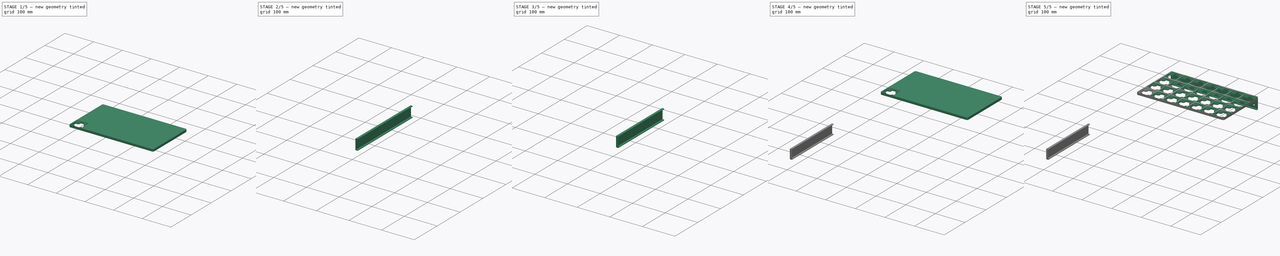
[diagram: build sequence overview — one tinted view per stage of 5, left to right]
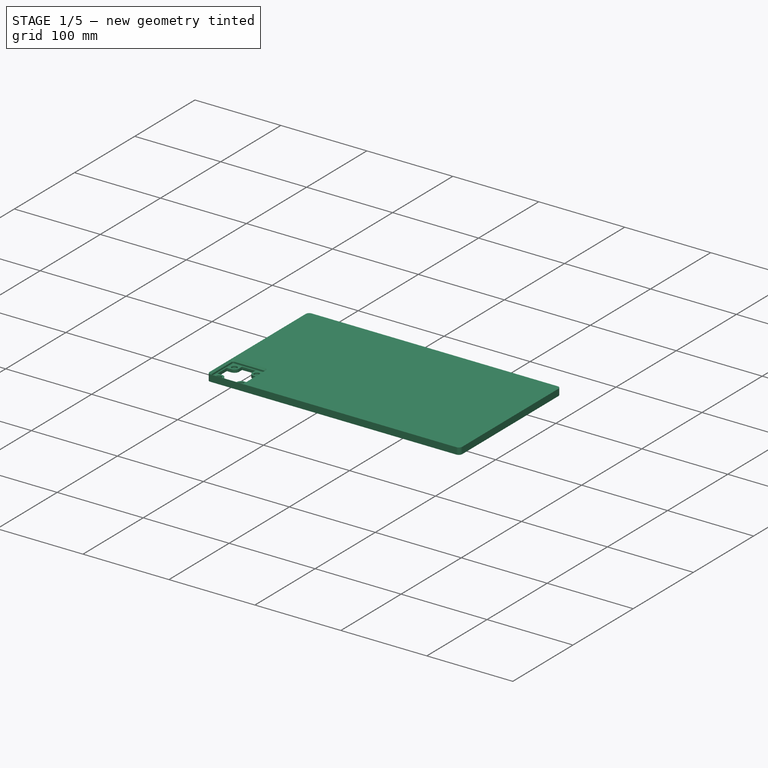
[diagram: stage 1 of 5 — iso view after this stage's code; geometry added in this stage tinted green]
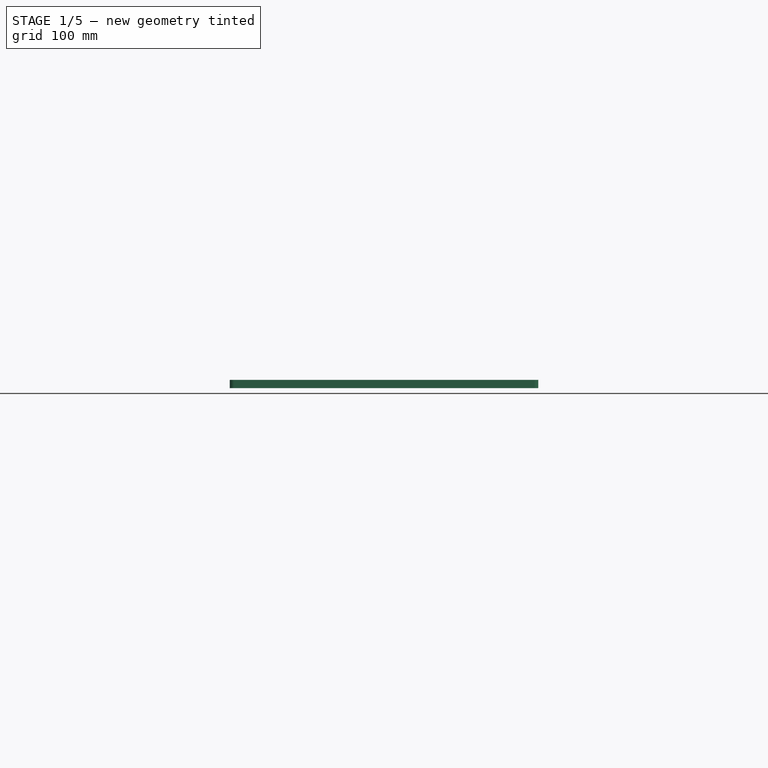
[diagram: stage 1 of 5 — front view after this stage's code; geometry added in this stage tinted green]
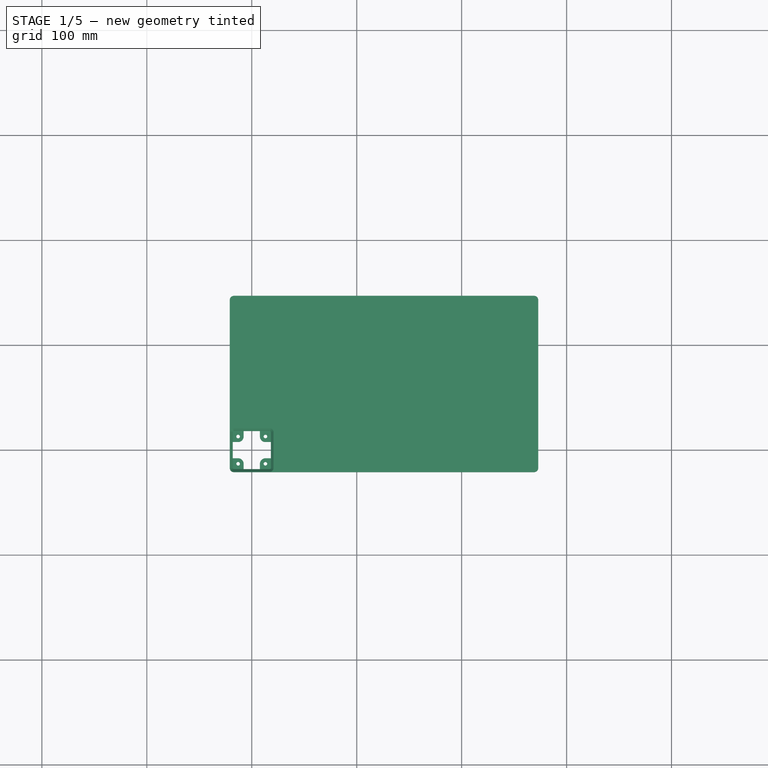
[diagram: stage 1 of 5 — top view after this stage's code; geometry added in this stage tinted green]
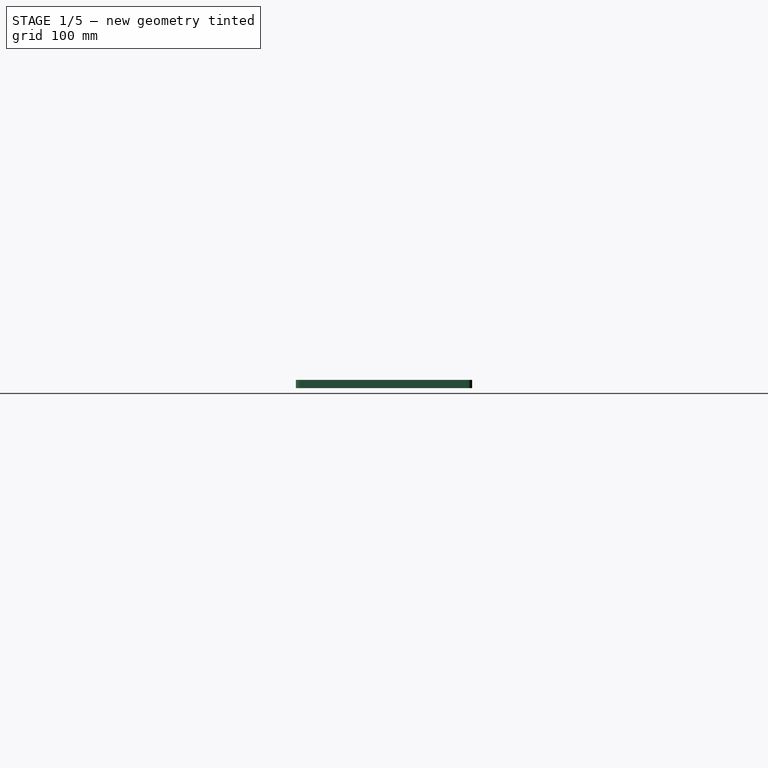
[diagram: stage 1 of 5 — right view after this stage's code; geometry added in this stage tinted green]
FCSTD DOCUMENT  (FreeCAD 1.1R20260223 (Git shallow))
Label: TableCornerGridfinity
License: Creative Commons Attribution 4.0
LicenseURL: https://creativecommons.org/licenses/by/4.0/
objects: Sketcher::SketchObject×19, PartDesign::Pad×10, PartDesign::Pocket×9, App::Point×4, PartDesign::Hole×4, PartDesign::Body×4, PartDesign::Chamfer×3, PartDesign::LinearPattern×2, PartDesign::SubShapeBinder×2, PartDesign::Fillet×1
note: 129 computed .brp shape members not serialized (recipe doc carries the construction recipe); baked Part::Feature solids carry a one-line shape summary decoded from their .brp

FEATURE [App::Point] Origin004
  Role = Origin
FEATURE [Sketcher::SketchObject] Sketch005
  ArcFitTolerance = 1e-06
  AttachmentSupport = -> [Origin003]
  ExternalTypes = [0]
  FullyConstrained = true
  MakeInternals = false
  MapMode = 5
  expr: Constraints[30] = href(<<Gridfinity Baseplate>>.Depth) * 42
  expr: Constraints[31] = href(<<Gridfinity Baseplate>>.Width) * 42
  sketch-geometry (10):
    g0: LineSegment StartX=-17 StartY=-21 StartZ=0 EndX=269 EndY=-21 EndZ=0
    g1: LineSegment StartX=273 StartY=-17 StartZ=0 EndX=273 EndY=143 EndZ=0
    g2: LineSegment StartX=269 StartY=147 StartZ=0 EndX=-17 EndY=147 EndZ=0
    g3: LineSegment StartX=-21 StartY=143 StartZ=0 EndX=-21 EndY=-17 EndZ=0
    g4: ArcOfCircle CenterX=-17 CenterY=-17 CenterZ=0 NormalX=0 NormalY=0 NormalZ=1 AngleXU=0 Radius=4 StartAngle=3.14159 EndAngle=4.71239
    g5: ArcOfCircle CenterX=269 CenterY=-17 CenterZ=0 NormalX=0 NormalY=0 NormalZ=1 AngleXU=0 Radius=4 StartAngle=4.71239 EndAngle=6.28319
    g6: ArcOfCircle CenterX=269 CenterY=143 CenterZ=0 NormalX=0 NormalY=0 NormalZ=1 AngleXU=0 Radius=4 StartAngle=0 EndAngle=1.5708
    g7: ArcOfCircle CenterX=-17 CenterY=143 CenterZ=0 NormalX=0 NormalY=0 NormalZ=1 AngleXU=0 Radius=4 StartAngle=1.5708 EndAngle=3.14159
    g8: GeomPoint [constr] X=-21 Y=-21 Z=0
    g9: GeomPoint [constr] X=273 Y=147 Z=0
  constraints (32):
    c: Horizontal(g0)
    c: Horizontal(g2)
    c: Vertical(g1)
    c: Vertical(g3)
    c: Equal(g4,g5)
    c: Equal(g5,g6)
    c: Equal(g6,g7)
    c: PointOnObject(g8,g0)
    c: PointOnObject(g8,g3)
    c: PointOnObject(g9,g1)
    c: PointOnObject(g9,g2)
    c: Vertical(g6,g2)
    c: Vertical(g2,g7)
    c: Vertical(g5,g0)
    c: Vertical(g4,g0)
    c: Horizontal(g3,g4)
    c: Horizontal(g5,g1)
    c: Horizontal(g6,g1)
    c: Horizontal(g3,g7)
    c: Radius(g6) = 4
    c: Coincident(g7,g2)
    c: Coincident(g7,g3)
    c: Coincident(g6,g1)
    c: Coincident(g6,g2)
    c: Coincident(g5,g1)
    c: Coincident(g5,g0)
    c: Coincident(g4,g0)
    c: Coincident(g4,g3)
    c: DistanceX(g3,g-1) = 21
    c: DistanceY(g0,g-1) = 21
    c: DistanceY(g0,g2) = 168
    c: DistanceX(g3,g1) = 294
FEATURE [PartDesign::Pad] Pad004
  Direction = (0,0,1)
  Length = 4.75
  Length2 = 3
  Profile = -> Sketch005
  ReferenceAxis = -> Sketch005 [N_Axis]
  SideType = 1
  Suppressed = false
  Type = 0
  Type2 = 0
FEATURE [Sketcher::SketchObject] Sketch007
  ArcFitTolerance = 1e-06
  AttachmentOffset = pos=(0,0,0.25) rot=(0,0,1;0rad)
  AttachmentSupport = -> [Pad004]
  ExternalGeometry = -> [Pad004]
  ExternalTypes = [0,0]
  FullyConstrained = true
  MakeInternals = false
  MapMode = 5
  Placement = pos=(0,0,5) rot=(0,0,1;0rad)
  sketch-geometry (8):
    g0: LineSegment StartX=-21 StartY=-17 StartZ=0 EndX=-21 EndY=17 EndZ=0
    g1: LineSegment StartX=-17 StartY=-21 StartZ=0 EndX=17 EndY=-21 EndZ=0
    g2: LineSegment StartX=21 StartY=-17 StartZ=0 EndX=21 EndY=17 EndZ=0
    g3: LineSegment StartX=-17 StartY=21 StartZ=0 EndX=17 EndY=21 EndZ=0
    g4: ArcOfCircle CenterX=-17 CenterY=-17 CenterZ=0 NormalX=0 NormalY=0 NormalZ=1 AngleXU=0 Radius=4 StartAngle=3.14159 EndAngle=4.71239
    g5: ArcOfCircle CenterX=17 CenterY=-17 CenterZ=0 NormalX=0 NormalY=0 NormalZ=1 AngleXU=0 Radius=4 StartAngle=4.71239 EndAngle=6.28319
    g6: ArcOfCircle CenterX=17 CenterY=17 CenterZ=0 NormalX=0 NormalY=0 NormalZ=1 AngleXU=0 Radius=4 StartAngle=0 EndAngle=1.5708
    g7: ArcOfCircle CenterX=-17 CenterY=17 CenterZ=0 NormalX=0 NormalY=0 NormalZ=1 AngleXU=0 Radius=4 StartAngle=1.5708 EndAngle=3.14159
  constraints (26):
    c: Vertical(g0)
    c: Horizontal(g1)
    c: Vertical(g2)
    c: Horizontal(g3)
    c: Coincident(g0,g-3)
    c: Coincident(g1,g-4)
    c: Vertical(g7,g7)
    c: Vertical(g6,g6)
    c: Vertical(g5,g5)
    c: Vertical(g4,g4)
    c: Horizontal(g7,g7)
    c: Horizontal(g6,g6)
    c: Horizontal(g5,g5)
    c: Coincident(g7,g0)
    c: Coincident(g7,g3)
    c: Coincident(g3,g6)
    c: Coincident(g6,g2)
    c: Coincident(g5,g2)
    c: Coincident(g5,g1)
    c: Coincident(g4,g1)
    c: Coincident(g4,g0)
    c: Equal(g4,g7)
    c: Equal(g7,g6)
    c: Equal(g6,g5)
    c: Equal(g2,g1)
    c: DistanceX(g0,g2) = 42
FEATURE [PartDesign::Pocket] Pocket001
  BaseFeature = -> Pad004
  Direction = (0,0,-1)
  Length = 2.15
  Length2 = 5
  Profile = -> Sketch007
  ReferenceAxis = -> Sketch007 [N_Axis]
  SideType = 0
  Suppressed = false
  TaperAngle = -45
  Type = 0
  Type2 = 0
FEATURE [PartDesign::Pocket] Pocket002
  BaseFeature = -> Pocket001
  Direction = (0,0,-1)
  Length = 1.8
  Length2 = 5
  Profile = -> Pocket001 [Edge45,Edge43,Edge41,Edge39,Edge37,Edge34,Edge48,Edge47]
  SideType = 0
  Suppressed = false
  Type = 0
  Type2 = 0
FEATURE [PartDesign::Pocket] Pocket003
  BaseFeature = -> Pocket002
  Direction = (0,0,-1)
  Length = 0.7
  Length2 = 5
  Profile = -> Pocket002 [Edge61,Edge59,Edge57,Edge55,Edge53,Edge51,Edge64,Edge63]
  SideType = 0
  Suppressed = false
  TaperAngle = -45
  Type = 0
  Type2 = 0
FEATURE [Sketcher::SketchObject] Sketch008
  ArcFitTolerance = 1e-06
  AttachmentSupport = -> [Pocket003]
  ExternalGeometry = -> [Pocket003]
  ExternalTypes = [0,0]
  FullyConstrained = true
  MakeInternals = false
  MapMode = 5
  Placement = pos=(0,0,0.35) rot=(0,0,1;0rad)
  sketch-geometry (6):
    g0: Circle CenterX=-13 CenterY=-13 CenterZ=0 NormalX=0 NormalY=0 NormalZ=1 AngleXU=0 Radius=3.25
    g1: Circle CenterX=13 CenterY=-13 CenterZ=0 NormalX=0 NormalY=0 NormalZ=1 AngleXU=0 Radius=3.25
    g2: Circle CenterX=13 CenterY=13 CenterZ=0 NormalX=0 NormalY=0 NormalZ=1 AngleXU=0 Radius=3.25
    g3: Circle CenterX=-13 CenterY=13 CenterZ=0 NormalX=0 NormalY=0 NormalZ=1 AngleXU=0 Radius=3.25
    g4: LineSegment [constr] StartX=-13 StartY=-13 StartZ=0 EndX=13 EndY=-13 EndZ=0
    g5: LineSegment [constr] StartX=-13 StartY=-13 StartZ=0 EndX=-13 EndY=13 EndZ=0
  constraints (16):
    c: Equal(g3,g2)
    c: Equal(g2,g1)
    c: Equal(g1,g0)
    c: Vertical(g3,g0)
    c: Vertical(g2,g1)
    c: Horizontal(g3,g2)
    c: Horizontal(g0,g1)
    c: DistanceX(g-3,g0) = 8
    c: DistanceY(g-4,g0) = 8
    c: Diameter(g0) = 6.5
    c: Coincident(g4,g0)
    c: Coincident(g4,g1)
    c: Coincident(g5,g0)
    c: Coincident(g5,g3)
    c: Equal(g5,g4)
    c: DistanceX(g4,g4) = 26
FEATURE [PartDesign::Hole] Hole001
  BaseFeature = -> Pocket003
  BaseProfileType = 7
  CustomThreadClearance = 0
  Depth = 646.312
  DepthType = 1
  Diameter = 3.4
  DrillForDepth = false
  DrillPoint = 0
  DrillPointAngle = 118
  HoleCutCountersinkAngle = 90
  HoleCutCustomValues = false
  HoleCutDepth = 2
  HoleCutDiameter = 6.5
  HoleCutType = 1
  ModelThread = false
  Profile = -> Sketch008
  Suppressed = false
  Tapered = false
  TaperedAngle = 90
  ThreadClass = 0
  ThreadDepth = 646.312
  ThreadDepthType = 0
  ThreadDiameter = 3
  ThreadDirection = 0
  ThreadFit = 0
  ThreadSize = 9
  ThreadType = 1
  Threaded = false
  UseCustomThreadClearance = false
FEATURE [Sketcher::SketchObject] Sketch009
  ArcFitTolerance = 1e-06
  AttachmentSupport = -> [Hole001]
  ExternalGeometry = -> [Sketch008,Hole001]
  ExternalTypes = [0,0,0,0,0,0,0,0]
  FullyConstrained = true
  MakeInternals = false
  MapMode = 5
  Placement = pos=(0,0,0.35) rot=(0,0,1;0rad)
  sketch-geometry (16):
    g0: ArcOfCircle CenterX=-13 CenterY=13 CenterZ=0 NormalX=0 NormalY=0 NormalZ=1 AngleXU=0 Radius=5.25 StartAngle=4.71239 EndAngle=6.28319
    g1: ArcOfCircle CenterX=13 CenterY=13 CenterZ=0 NormalX=0 NormalY=0 NormalZ=1 AngleXU=0 Radius=5.25 StartAngle=3.14159 EndAngle=4.71239
    g2: ArcOfCircle CenterX=13 CenterY=-13 CenterZ=0 NormalX=0 NormalY=0 NormalZ=1 AngleXU=0 Radius=5.25 StartAngle=1.5708 EndAngle=3.14159
    g3: ArcOfCircle CenterX=-13 CenterY=-13 CenterZ=0 NormalX=0 NormalY=0 NormalZ=1 AngleXU=0 Radius=5.25 StartAngle=0 EndAngle=1.5708
    g4: LineSegment StartX=-7.75 StartY=13 StartZ=0 EndX=-7.75 EndY=18.15 EndZ=0
    g5: LineSegment StartX=7.75 StartY=13 StartZ=0 EndX=7.75 EndY=18.15 EndZ=0
    g6: LineSegment StartX=13 StartY=7.75 StartZ=0 EndX=18.15 EndY=7.75 EndZ=0
    g7: LineSegment StartX=13 StartY=-7.75 StartZ=0 EndX=18.15 EndY=-7.75 EndZ=0
    g8: LineSegment StartX=7.75 StartY=-13 StartZ=0 EndX=7.75 EndY=-18.15 EndZ=0
    g9: LineSegment StartX=-7.75 StartY=-13 StartZ=0 EndX=-7.75 EndY=-18.15 EndZ=0
    g10: LineSegment StartX=-13 StartY=-7.75 StartZ=0 EndX=-18.15 EndY=-7.75 EndZ=0
    g11: LineSegment StartX=-13 StartY=7.75 StartZ=0 EndX=-18.15 EndY=7.75 EndZ=0
    g12: LineSegment StartX=-7.75 StartY=18.15 StartZ=0 EndX=7.75 EndY=18.15 EndZ=0
    g13: LineSegment StartX=18.15 StartY=7.75 StartZ=0 EndX=18.15 EndY=-7.75 EndZ=0
    g14: LineSegment StartX=7.75 StartY=-18.15 StartZ=0 EndX=-7.75 EndY=-18.15 EndZ=0
    g15: LineSegment StartX=-18.15 StartY=-7.75 StartZ=0 EndX=-18.15 EndY=7.75 EndZ=0
  constraints (48):
    c: Coincident(g0,g-3)
    c: Coincident(g1,g-4)
    c: Coincident(g2,g-5)
    c: Coincident(g3,g-6)
    c: Equal(g3,g2)
    c: Equal(g2,g1)
    c: Equal(g1,g0)
    c: Vertical(g0,g0)
    c: Vertical(g3,g3)
    c: Vertical(g2,g2)
    c: Vertical(g1,g1)
    c: Horizontal(g0,g0)
    c: Horizontal(g1,g1)
    c: Horizontal(g3,g3)
    c: Horizontal(g2,g2)
    c: Distance(g-3,g0) = 2
    c: Coincident(g4,g0)
    c: PointOnObject(g4,g-8)
    c: Vertical(g4)
    c: Coincident(g5,g1)
    c: PointOnObject(g5,g-8)
    c: Vertical(g5)
    c: Coincident(g6,g1)
    c: PointOnObject(g6,g-9)
    c: Horizontal(g6)
    c: Coincident(g7,g2)
    c: PointOnObject(g7,g-9)
    c: Horizontal(g7)
    c: Coincident(g8,g2)
    c: PointOnObject(g8,g-10)
    c: Vertical(g8)
    c: Coincident(g9,g3)
    c: PointOnObject(g9,g-10)
    c: Vertical(g9)
    c: Coincident(g10,g3)
    c: PointOnObject(g10,g-7)
    c: Horizontal(g10)
    c: Coincident(g11,g0)
    c: PointOnObject(g11,g-7)
    c: Horizontal(g11)
    c: Coincident(g12,g4)
    c: Coincident(g12,g5)
    c: Coincident(g13,g6)
    c: Coincident(g13,g7)
    c: Coincident(g14,g8)
    c: Coincident(g14,g9)
    c: Coincident(g15,g10)
    c: Coincident(g15,g11)
FEATURE [PartDesign::Pocket] Pocket004
  BaseFeature = -> Hole001
  Direction = (0,0,-1)
  Length = 5
  Length2 = 5
  Profile = -> Sketch009
  ReferenceAxis = -> Sketch009 [N_Axis]
  SideType = 0
  Suppressed = false
  Type = 1
  Type2 = 0
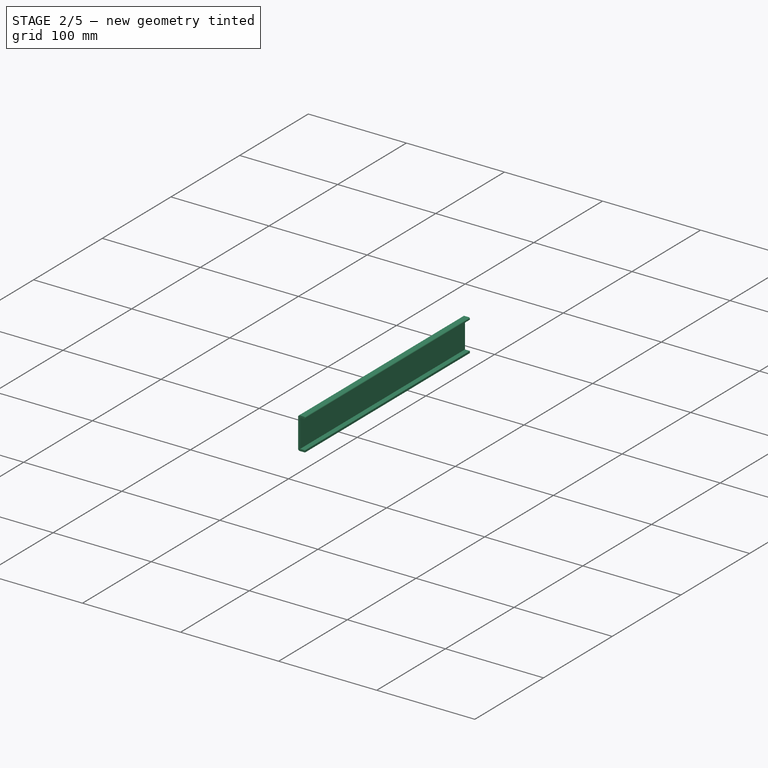
[diagram: stage 2 of 5 — iso view after this stage's code; geometry added in this stage tinted green]
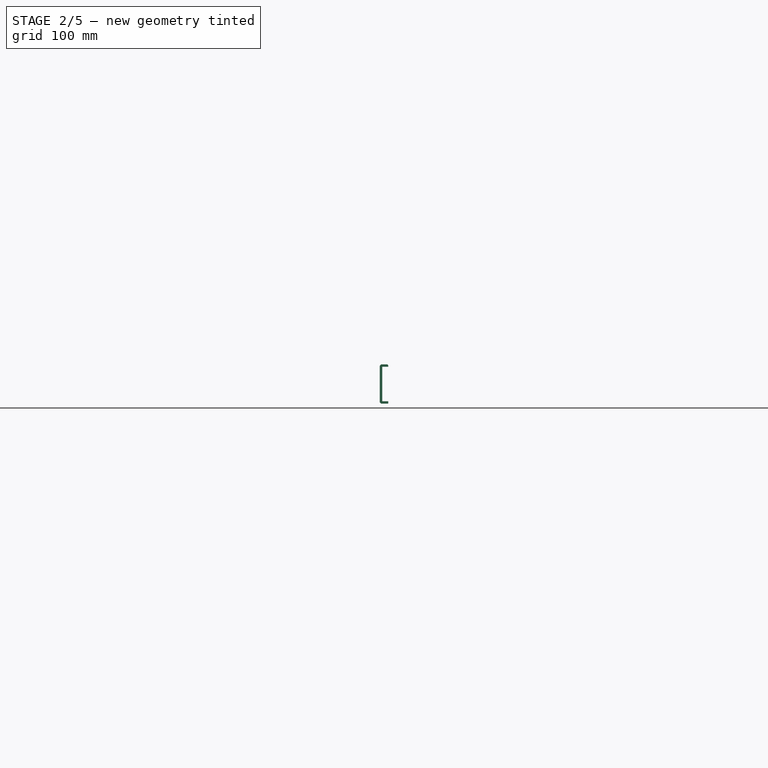
[diagram: stage 2 of 5 — front view after this stage's code; geometry added in this stage tinted green]
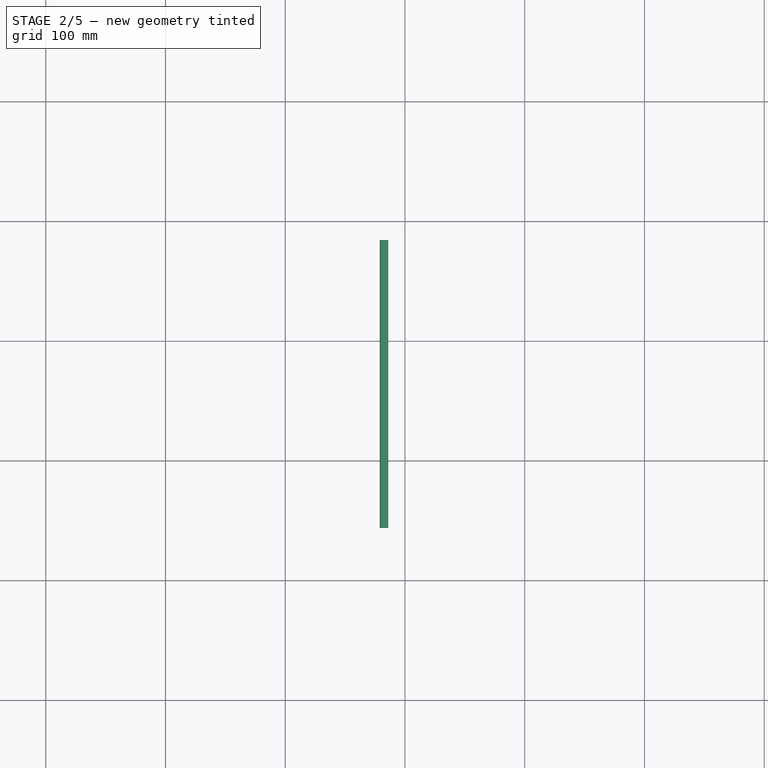
[diagram: stage 2 of 5 — top view after this stage's code; geometry added in this stage tinted green]
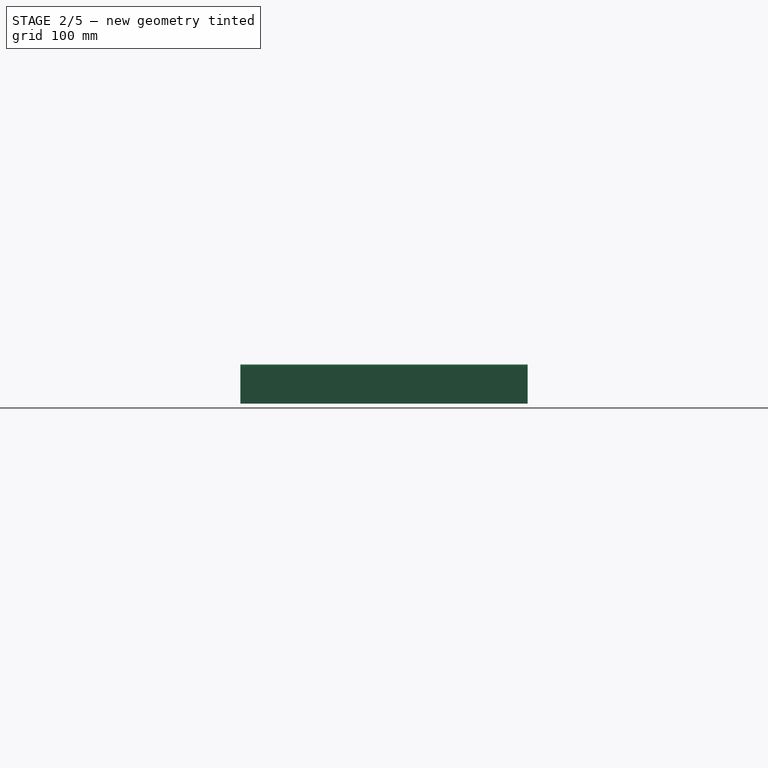
[diagram: stage 2 of 5 — right view after this stage's code; geometry added in this stage tinted green]
FEATURE [PartDesign::LinearPattern] LinearPattern
  BaseFeature = -> Pocket004
  Direction = -> Sketch007 [H_Axis]
  Direction2 = -> Sketch007 [V_Axis]
  Length = 252
  Length2 = 126
  Mode = 1
  Mode2 = 1
  Occurrences = 7
  Occurrences2 = 4
  Offset = 42
  Offset2 = 42
  Originals = -> [Pocket001,Pocket002,Pocket003,Hole001,Pocket004]
  Reversed2 = false
  SpacingPattern = [42]
  SpacingPattern2 = [42]
  Spacings = [-1,-1,-1,-1,-1,-1]
  Spacings2 = [-1,-1,-1]
  Suppressed = false
  TransformMode = 0
  expr: Occurrences = href(<<Gridfinity Baseplate>>.Width)
  expr: Occurrences2 = href(<<Gridfinity Baseplate>>.Depth)
FEATURE [Sketcher::SketchObject] Sketch
  ArcFitTolerance = 1e-06
  AttachmentOffset = pos=(0,0,-3) rot=(0,0,1;0rad)
  AttachmentSupport = -> [Origin003]
  ExternalGeometry = -> [LinearPattern]
  ExternalTypes = [0,0,0,0]
  FullyConstrained = true
  MakeInternals = false
  MapMode = 5
  Placement = pos=(0,0,-3) rot=(0,0,1;0rad)
  sketch-geometry (6):
    g0: LineSegment StartX=269 StartY=147 StartZ=0 EndX=-17 EndY=147 EndZ=0
    g1: LineSegment StartX=-21 StartY=143 StartZ=0 EndX=-21 EndY=-17 EndZ=0
    g2: ArcOfCircle CenterX=269 CenterY=143 CenterZ=0 NormalX=0 NormalY=0 NormalZ=1 AngleXU=0 Radius=4 StartAngle=0.523599 EndAngle=1.5708
    g3: ArcOfCircle CenterX=-17 CenterY=-17 CenterZ=0 NormalX=0 NormalY=0 NormalZ=1 AngleXU=0 Radius=4 StartAngle=3.14159 EndAngle=4.18879
    g4: LineSegment StartX=-19 StartY=-20.4641 StartZ=0 EndX=-19 EndY=145 EndZ=0
    g5: LineSegment StartX=272.464 StartY=145 StartZ=0 EndX=-19 EndY=145 EndZ=0
  constraints (15):
    c: Coincident(g0,g-5)
    c: Coincident(g0,g-3)
    c: Coincident(g1,g-3)
    c: Coincident(g1,g-4)
    c: Coincident(g2,g-5)
    c: Coincident(g2,g0)
    c: DistanceY(g2,g0) = 2
    c: Coincident(g3,g-4)
    c: Coincident(g3,g1)
    c: Coincident(g4,g3)
    c: Vertical(g4)
    c: Coincident(g5,g2)
    c: Horizontal(g5)
    c: Coincident(g5,g4)
    c: DistanceX(g1,g3) = 2
FEATURE [PartDesign::Pad] Pad
  BaseFeature = -> LinearPattern
  Direction = (0,0,1)
  Length = 28.75
  Length2 = 10
  Profile = -> Sketch
  ReferenceAxis = -> Sketch [N_Axis]
  Reversed = true
  SideType = 0
  Suppressed = false
  Type = 0
  Type2 = 0
FEATURE [Sketcher::SketchObject] Sketch010
  ArcFitTolerance = 1e-06
  AttachmentSupport = -> [Pad]
  ExternalGeometry = -> [Pad]
  ExternalTypes = [0,0,0,0,0]
  FullyConstrained = true
  MakeInternals = false
  MapMode = 5
  Placement = pos=(0,0,-31.75) rot=(1,0,0;3.14159rad)
  sketch-geometry (4):
    g0: LineSegment StartX=-19 StartY=20.4641 StartZ=0 EndX=-14 EndY=20.4641 EndZ=0
    g1: LineSegment StartX=-14 StartY=20.4641 StartZ=0 EndX=-14 EndY=-140 EndZ=0
    g2: LineSegment StartX=-14 StartY=-140 StartZ=0 EndX=272.464 EndY=-140 EndZ=0
    g3: LineSegment StartX=272.464 StartY=-140 StartZ=0 EndX=272.464 EndY=-145 EndZ=0
  constraints (11):
    c: Coincident(g-3,g0)
    c: Horizontal(g0)
    c: Coincident(g0,g1)
    c: Vertical(g1)
    c: Coincident(g1,g2)
    c: Horizontal(g2)
    c: Coincident(g2,g3)
    c: Coincident(g3,g-7)
    c: Vertical(g3)
    c: Equal(g0,g3)
    c: DistanceY(g3,g3) = 5
FEATURE [PartDesign::Pad] Pad005
  BaseFeature = -> Pad
  Direction = (0,0,-1)
  Length = 2
  Length2 = 10
  Profile = -> Sketch010
  ReferenceAxis = -> Sketch010 [N_Axis]
  Refine = true
  SideType = 0
  Suppressed = false
  Type = 0
  Type2 = 0
FEATURE [PartDesign::Chamfer] Chamfer
  Angle = 45
  Base = -> Pad005 [Edge3621]
  BaseFeature = -> Pad005
  ChamferType = 0
  FlipDirection = false
  Size = 1
  Size2 = 1
  SupportTransform = false
  Suppressed = false
  UseAllEdges = false
FEATURE [Sketcher::SketchObject] Sketch011
  ArcFitTolerance = 1e-06
  AttachmentSupport = -> [Chamfer]
  ExternalGeometry = -> [Chamfer]
  ExternalTypes = [0,0]
  FullyConstrained = true
  MakeInternals = false
  MapMode = 5
  Placement = pos=(0,147,0) rot=(0,0.707107,0.707107;3.14159rad)
  sketch-geometry (3):
    g0: GeomPoint X=-259 Y=-22.75 Z=0
    g1: GeomPoint X=7 Y=-22.75 Z=0
    g2: LineSegment [constr] StartX=-126 StartY=-32.75 StartZ=0 EndX=-126 EndY=4.75 EndZ=0
  constraints (6):
    c: Horizontal(g2,g-3)
    c: Horizontal(g-3,g2)
    c: Symmetric(g-3,g-4,g2)
    c: Symmetric(g0,g1,g2)
    c: DistanceX(g1,g-4) = 10
    c: DistanceY(g-4,g1) = 10
FEATURE [PartDesign::Hole] Hole
  BaseFeature = -> Chamfer
  BaseProfileType = 7
  CustomThreadClearance = 0
  Depth = 688.409
  DepthType = 1
  Diameter = 3.9
  DrillForDepth = false
  DrillPoint = 1
  DrillPointAngle = 118
  HoleCutCountersinkAngle = 90
  HoleCutCustomValues = false
  HoleCutDepth = 3.25
  HoleCutDiameter = 6.5
  HoleCutType = 2
  ModelThread = false
  Profile = -> Sketch011
  Suppressed = false
  Tapered = false
  TaperedAngle = 90
  ThreadClass = 0
  ThreadDepth = 688.409
  ThreadDepthType = 0
  ThreadDiameter = 3.5
  ThreadDirection = 0
  ThreadFit = 0
  ThreadSize = 10
  ThreadType = 1
  Threaded = false
  UseCustomThreadClearance = false
FEATURE [PartDesign::Body] Body002  label="Gridfinity Baseplate001"
  AllowCompound = false
  Depth = 4
  Group = -> [Sketch012,Pad006,Sketch013,Pocket005,Pocket006,Pocket007,Sketch014,Hole002,Sketch015,Pocket008,LinearPattern001,Sketch016,Pad007,Sketch017,Pad008,Sketch018,Pad009,Chamfer001,Sketch019,Hole003]
  Origin = -> Origin006
  Placement = pos=(294,-5.68e-14,0) rot=(0,0,1;0rad)
  Tip = -> Hole003
  Width = 7
FEATURE [App::Point] Origin007  label="Origin008"
  Role = Origin
FEATURE [PartDesign::SubShapeBinder] Binder
  BindCopyOnChange = 0
  BindMode = 0
  ClaimChildren = false
  Context = -> Body [Binder.]
  Fuse = false
  MakeFace = true
  OffsetFill = false
  OffsetIntersection = false
  OffsetJoinType = 0
  OffsetOpenResult = false
  PartialLoad = false
  Refine = true
  Relative = true
  Support = -> [Body001]
  _Version = 2
FEATURE [Sketcher::SketchObject] Sketch020
  ArcFitTolerance = 1e-06
  AttachmentSupport = -> [Binder]
  ExternalGeometry = -> [Binder]
  ExternalTypes = [0,0,0]
  FullyConstrained = true
  MakeInternals = false
  MapMode = 5
  Placement = pos=(0,-21,0) rot=(1,0,0;1.5708rad)
  sketch-geometry (9):
    g0: LineSegment StartX=-19 StartY=-31.75 StartZ=0 EndX=-14 EndY=-31.75 EndZ=0
    g1: LineSegment StartX=-14 StartY=-33.75 StartZ=0 EndX=-20 EndY=-33.75 EndZ=0
    g2: LineSegment StartX=-21 StartY=-32.75 StartZ=0 EndX=-21 EndY=-2 EndZ=0
    g3: LineSegment StartX=-14 StartY=-2 StartZ=0 EndX=-14 EndY=-3 EndZ=0
    g4: LineSegment StartX=-14 StartY=-3 StartZ=0 EndX=-19 EndY=-3 EndZ=0
    g5: LineSegment StartX=-20 StartY=-1 StartZ=0 EndX=-15 EndY=-1 EndZ=0
    g6: ArcOfCircle CenterX=-15 CenterY=-2 CenterZ=0 NormalX=0 NormalY=0 NormalZ=1 AngleXU=0 Radius=1 StartAngle=0 EndAngle=1.5708
    g7: LineSegment [constr] StartX=-14 StartY=-3 StartZ=0 EndX=-14 EndY=-1 EndZ=0
    g8: LineSegment StartX=-21 StartY=-2 StartZ=0 EndX=-20 EndY=-1 EndZ=0
  constraints (25):
    c: Coincident(g0,g-5)
    c: Coincident(g0,g-4)
    c: Coincident(g1,g-4)
    c: Coincident(g1,g-3)
    c: Coincident(g2,g-3)
    c: Vertical(g2)
    c: Vertical(g3)
    c: Coincident(g4,g3)
    c: Coincident(g4,g-5)
    c: Horizontal(g4)
    c: Vertical(g3,g0)
    c: Horizontal(g5)
    c: Vertical(g5,g1)
    c: Coincident(g6,g5)
    c: Coincident(g6,g3)
    c: Horizontal(g6,g3)
    c: Vertical(g6,g5)
    c: Coincident(g7,g3)
    c: Vertical(g7)
    c: Horizontal(g5,g7)
    c: Equal(g7,g-4)
    c: Coincident(g8,g2)
    c: Coincident(g8,g5)
    c: Equal(g8,g-3)
    c: Horizontal(g2,g6)
FEATURE [PartDesign::Pad] Pad010
  Direction = (0,-1,2e-16)
  Length = 235
  Length2 = 5
  Profile = -> Sketch020
  ReferenceAxis = -> Sketch020 [N_Axis]
  SideType = 1
  Suppressed = false
  Type = 0
  Type2 = 0
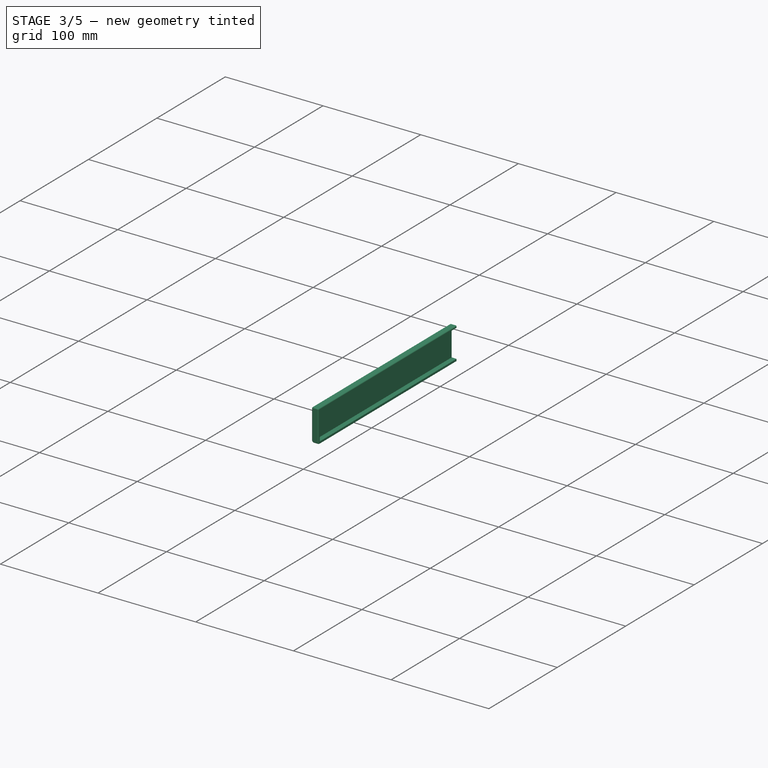
[diagram: stage 3 of 5 — iso view after this stage's code; geometry added in this stage tinted green]
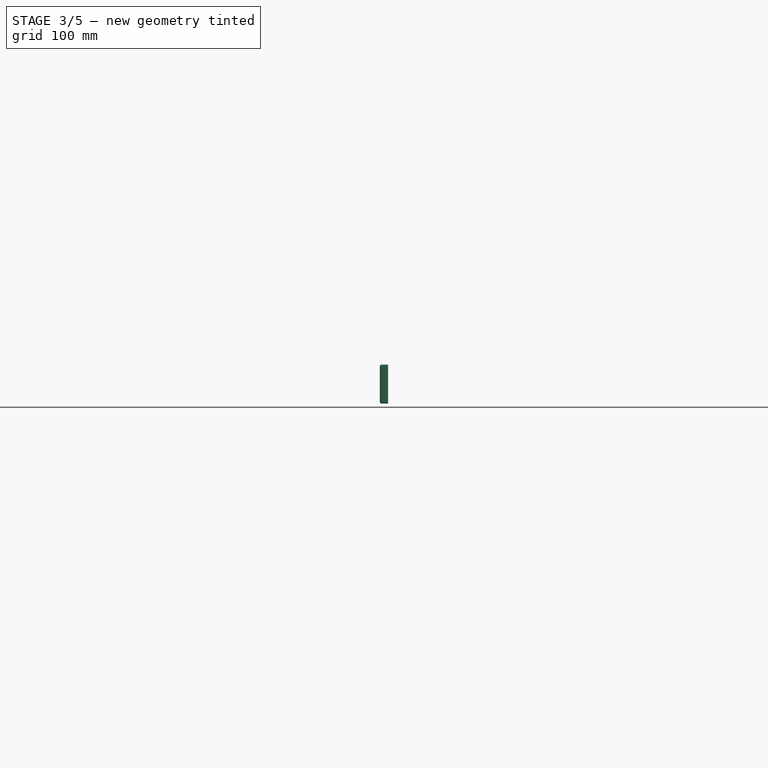
[diagram: stage 3 of 5 — front view after this stage's code; geometry added in this stage tinted green]
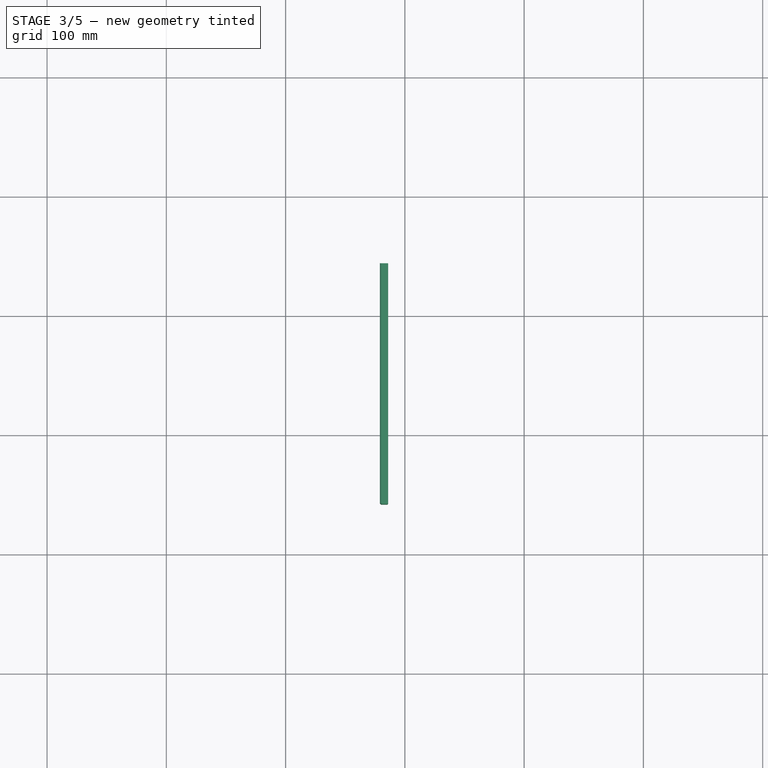
[diagram: stage 3 of 5 — top view after this stage's code; geometry added in this stage tinted green]
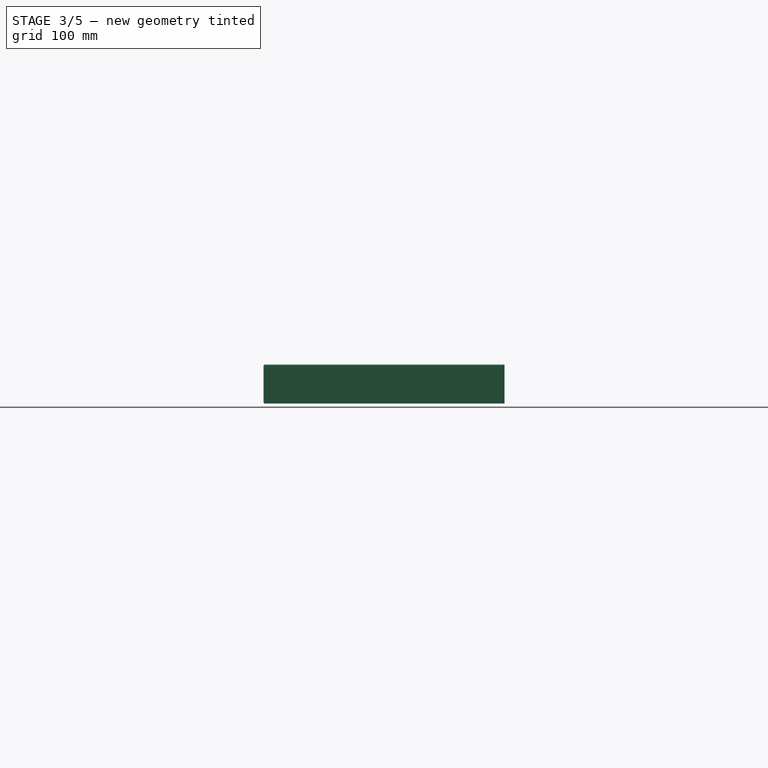
[diagram: stage 3 of 5 — right view after this stage's code; geometry added in this stage tinted green]
FEATURE [Sketcher::SketchObject] Sketch021
  ArcFitTolerance = 1e-06
  AttachmentSupport = -> [Pad010]
  ExternalGeometry = -> [Binder,Pad010]
  ExternalTypes = [0,0]
  FullyConstrained = true
  MakeInternals = false
  MapMode = 5
  Placement = pos=(0,-2e-16,-1) rot=(0,0,1;0rad)
  sketch-geometry (6):
    g0: LineSegment StartX=-21 StartY=-19.8284 StartZ=0 EndX=-21 EndY=-16 EndZ=0
    g1: LineSegment StartX=-21 StartY=-16 StartZ=0 EndX=-14 EndY=-16 EndZ=0
    g2: LineSegment StartX=-14 StartY=-16 StartZ=0 EndX=-14 EndY=-21 EndZ=0
    g3: LineSegment StartX=-14 StartY=-21 StartZ=0 EndX=-17 EndY=-21 EndZ=0
    g4: ArcOfCircle CenterX=-17 CenterY=-17 CenterZ=0 NormalX=0 NormalY=0 NormalZ=1 AngleXU=0 Radius=4 StartAngle=3.82127 EndAngle=4.71239
    g5: ArcOfCircle CenterX=-20.5 CenterY=-19.8284 CenterZ=0 NormalX=0 NormalY=0 NormalZ=1 AngleXU=0 Radius=0.5 StartAngle=0.679674 EndAngle=3.14159
  constraints (15):
    c: Vertical(g0)
    c: Coincident(g0,g1)
    c: Coincident(g1,g-4)
    c: Horizontal(g1)
    c: Coincident(g1,g2)
    c: PointOnObject(g2,g-4)
    c: Coincident(g2,g3)
    c: Coincident(g3,g-3)
    c: Horizontal(g3)
    c: Vertical(g0,g-3)
    c: Coincident(g4,g-3)
    c: Coincident(g4,g3)
    c: Tangent(g5,g4) = 1.5708
    c: Tangent(g5,g0) = 1.5708
    c: Radius(g5) = 0.5
FEATURE [PartDesign::Pocket] Pocket
  BaseFeature = -> Pad010
  Direction = (0,0,-1)
  Length = 5
  Length2 = 5
  Profile = -> Sketch021
  ReferenceAxis = -> Sketch021 [N_Axis]
  SideType = 0
  Suppressed = false
  Type = 1
  Type2 = 0
FEATURE [PartDesign::Body] Body  label="Side 1"
  AllowCompound = false
  Group = -> [Binder,Sketch020,Pad010,Sketch021,Pocket]
  Origin = -> Origin
  Tip = -> Pocket
FEATURE [App::Point] Origin009  label="Origin010"
  Role = Origin
FEATURE [PartDesign::SubShapeBinder] Binder001
  BindCopyOnChange = 0
  BindMode = 0
  ClaimChildren = false
  Context = -> Body003 [Binder001.]
  Fuse = false
  MakeFace = true
  OffsetFill = false
  OffsetIntersection = false
  OffsetJoinType = 0
  OffsetOpenResult = false
  PartialLoad = false
  Refine = true
  Relative = true
  Support = -> [Body]
  _Version = 2
FEATURE [Sketcher::SketchObject] Sketch022
  ArcFitTolerance = 1e-06
  AttachmentSupport = -> [Binder001]
  ExternalGeometry = -> [Binder001]
  ExternalTypes = [0,0,0,0,0,0,0,0,0,0,0]
  FullyConstrained = true
  MakeInternals = false
  MapMode = 5
  Placement = pos=(0,-256,6.02e-14) rot=(1,0,0;1.5708rad)
FEATURE [PartDesign::Pad] Pad011
  Direction = (0,-1,2e-16)
  Length = 200
  Length2 = 10
  Profile = -> Sketch022
  ReferenceAxis = -> Sketch022 [N_Axis]
  SideType = 0
  Suppressed = false
  Type = 0
  Type2 = 0
FEATURE [Sketcher::SketchObject] Sketch023
  ArcFitTolerance = 1e-06
  AttachmentSupport = -> [Pad011]
  ExternalGeometry = -> [Pad011]
  ExternalTypes = [0,0,0,0,0,0]
  FullyConstrained = true
  MakeInternals = false
  MapMode = 5
  Placement = pos=(0,-456,0) rot=(1,0,0;1.5708rad)
  sketch-geometry (1):
    g0: LineSegment StartX=-14 StartY=-2 StartZ=0 EndX=-14 EndY=-33.75 EndZ=0
  constraints (2):
    c: Coincident(g0,g-5)
    c: Coincident(g0,g-6)
FEATURE [PartDesign::Pad] Pad012
  BaseFeature = -> Pad011
  Direction = (0,-1,2e-16)
  Length = 2
  Length2 = 10
  Profile = -> Sketch023
  ReferenceAxis = -> Sketch023 [N_Axis]
  Refine = true
  SideType = 0
  Suppressed = false
  Type = 0
  Type2 = 0
FEATURE [PartDesign::Chamfer] Chamfer002
  Angle = 45
  Base = -> Pad012 [Edge5,Edge4,Edge3]
  BaseFeature = -> Pad012
  ChamferType = 0
  FlipDirection = false
  Size = 1
  Size2 = 1
  SupportTransform = false
  Suppressed = false
  UseAllEdges = false
FEATURE [PartDesign::Fillet] Fillet
  Base = -> Chamfer002 [Edge7,Edge1]
  BaseFeature = -> Chamfer002
  Radius = 1
  SupportTransform = false
  Suppressed = false
  UseAllEdges = false
FEATURE [PartDesign::Body] Body003  label="Side 2"
  AllowCompound = false
  Group = -> [Binder001,Sketch022,Pad011,Sketch023,Pad012,Chamfer002,Fillet]
  Origin = -> Origin008
  Tip = -> Fillet
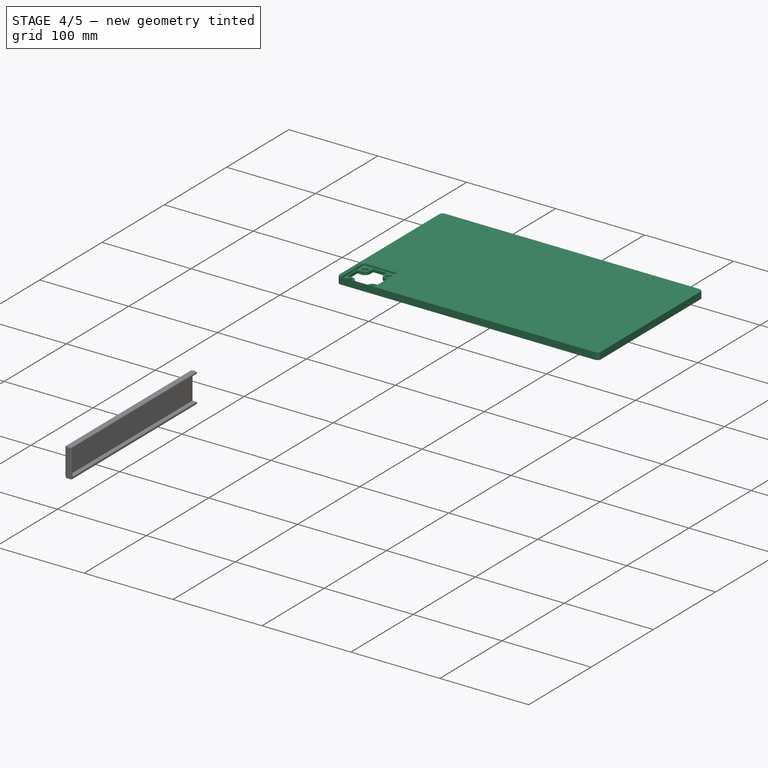
[diagram: stage 4 of 5 — iso view after this stage's code; geometry added in this stage tinted green]
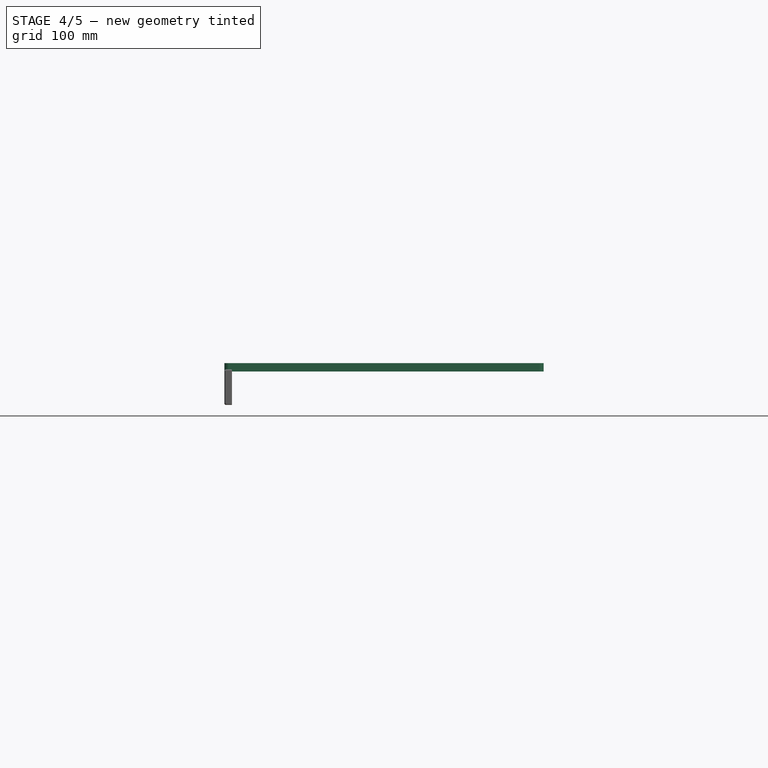
[diagram: stage 4 of 5 — front view after this stage's code; geometry added in this stage tinted green]
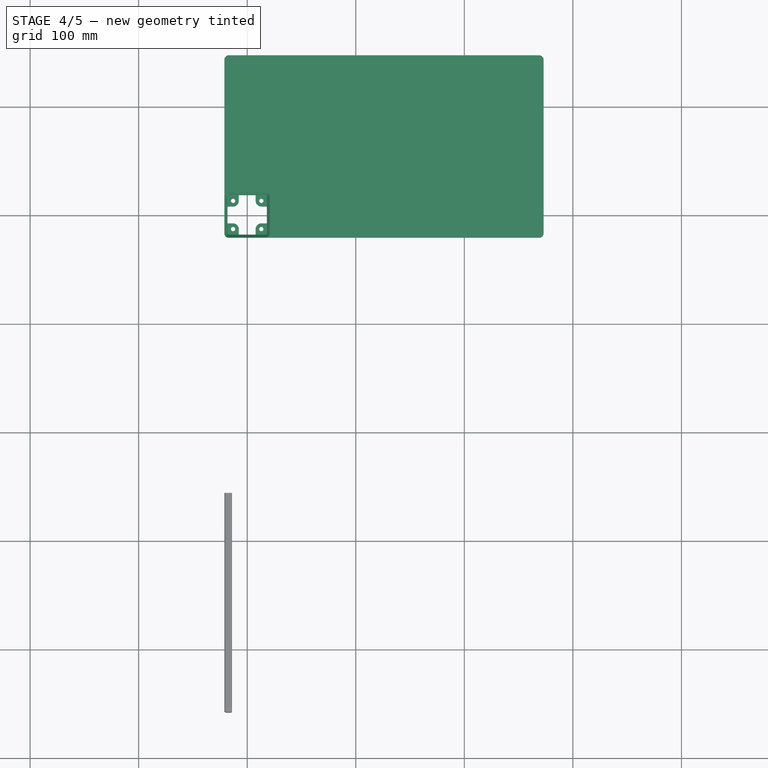
[diagram: stage 4 of 5 — top view after this stage's code; geometry added in this stage tinted green]
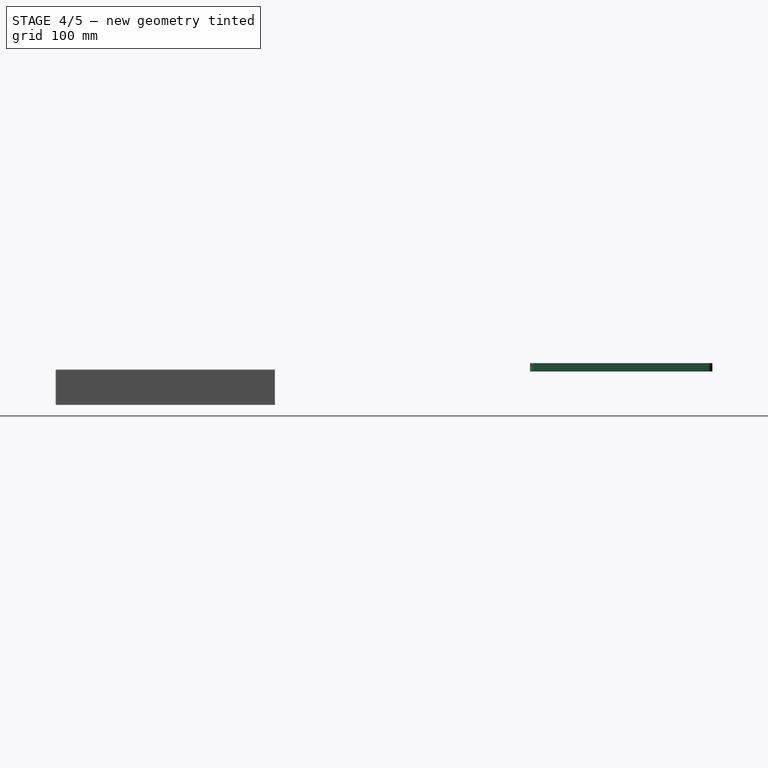
[diagram: stage 4 of 5 — right view after this stage's code; geometry added in this stage tinted green]
FEATURE [PartDesign::Body] Body001  label="Gridfinity Baseplate"
  AllowCompound = false
  Depth = 4
  Group = -> [Sketch005,Pad004,Sketch007,Pocket001,Pocket002,Pocket003,Sketch008,Hole001,Sketch009,Pocket004,LinearPattern,Sketch,Pad,Sketch010,Pad005,Chamfer,Sketch011,Hole]
  Origin = -> Origin003
  Tip = -> Hole
  Width = 7
FEATURE [App::Point] Origin005  label="Origin006"
  Role = Origin
FEATURE [Sketcher::SketchObject] Sketch012
  ArcFitTolerance = 1e-06
  AttachmentSupport = -> [Origin006]
  ExternalTypes = [0]
  FullyConstrained = true
  MakeInternals = false
  MapMode = 5
  expr: Constraints[30] = href(<<Gridfinity Baseplate001>>.Depth) * 42
  expr: Constraints[31] = href(<<Gridfinity Baseplate001>>.Width) * 42
  sketch-geometry (10):
    g0: LineSegment StartX=-17 StartY=-21 StartZ=0 EndX=269 EndY=-21 EndZ=0
    g1: LineSegment StartX=273 StartY=-17 StartZ=0 EndX=273 EndY=143 EndZ=0
    g2: LineSegment StartX=269 StartY=147 StartZ=0 EndX=-17 EndY=147 EndZ=0
    g3: LineSegment StartX=-21 StartY=143 StartZ=0 EndX=-21 EndY=-17 EndZ=0
    g4: ArcOfCircle CenterX=-17 CenterY=-17 CenterZ=0 NormalX=0 NormalY=0 NormalZ=1 AngleXU=0 Radius=4 StartAngle=3.14159 EndAngle=4.71239
    g5: ArcOfCircle CenterX=269 CenterY=-17 CenterZ=0 NormalX=0 NormalY=0 NormalZ=1 AngleXU=0 Radius=4 StartAngle=4.71239 EndAngle=6.28319
    g6: ArcOfCircle CenterX=269 CenterY=143 CenterZ=0 NormalX=0 NormalY=0 NormalZ=1 AngleXU=0 Radius=4 StartAngle=0 EndAngle=1.5708
    g7: ArcOfCircle CenterX=-17 CenterY=143 CenterZ=0 NormalX=0 NormalY=0 NormalZ=1 AngleXU=0 Radius=4 StartAngle=1.5708 EndAngle=3.14159
    g8: GeomPoint [constr] X=-21 Y=-21 Z=0
    g9: GeomPoint [constr] X=273 Y=147 Z=0
  constraints (32):
    c: Horizontal(g0)
    c: Horizontal(g2)
    c: Vertical(g1)
    c: Vertical(g3)
    c: Equal(g4,g5)
    c: Equal(g5,g6)
    c: Equal(g6,g7)
    c: PointOnObject(g8,g0)
    c: PointOnObject(g8,g3)
    c: PointOnObject(g9,g1)
    c: PointOnObject(g9,g2)
    c: Vertical(g6,g2)
    c: Vertical(g2,g7)
    c: Vertical(g5,g0)
    c: Vertical(g4,g0)
    c: Horizontal(g3,g4)
    c: Horizontal(g5,g1)
    c: Horizontal(g6,g1)
    c: Horizontal(g3,g7)
    c: Radius(g6) = 4
    c: Coincident(g7,g2)
    c: Coincident(g7,g3)
    c: Coincident(g6,g1)
    c: Coincident(g6,g2)
    c: Coincident(g5,g1)
    c: Coincident(g5,g0)
    c: Coincident(g4,g0)
    c: Coincident(g4,g3)
    c: DistanceX(g3,g-1) = 21
    c: DistanceY(g0,g-1) = 21
    c: DistanceY(g0,g2) = 168
    c: DistanceX(g3,g1) = 294
FEATURE [PartDesign::Pad] Pad006
  Direction = (0,0,1)
  Length = 4.75
  Length2 = 3
  Profile = -> Sketch012
  ReferenceAxis = -> Sketch012 [N_Axis]
  SideType = 1
  Suppressed = false
  Type = 0
  Type2 = 0
FEATURE [Sketcher::SketchObject] Sketch013
  ArcFitTolerance = 1e-06
  AttachmentOffset = pos=(0,0,0.25) rot=(0,0,1;0rad)
  AttachmentSupport = -> [Pad006]
  ExternalGeometry = -> [Pad006]
  ExternalTypes = [0,0]
  FullyConstrained = true
  MakeInternals = false
  MapMode = 5
  Placement = pos=(0,0,5) rot=(0,0,1;0rad)
  sketch-geometry (8):
    g0: LineSegment StartX=-21 StartY=-17 StartZ=0 EndX=-21 EndY=17 EndZ=0
    g1: LineSegment StartX=-17 StartY=-21 StartZ=0 EndX=17 EndY=-21 EndZ=0
    g2: LineSegment StartX=21 StartY=-17 StartZ=0 EndX=21 EndY=17 EndZ=0
    g3: LineSegment StartX=-17 StartY=21 StartZ=0 EndX=17 EndY=21 EndZ=0
    g4: ArcOfCircle CenterX=-17 CenterY=-17 CenterZ=0 NormalX=0 NormalY=0 NormalZ=1 AngleXU=0 Radius=4 StartAngle=3.14159 EndAngle=4.71239
    g5: ArcOfCircle CenterX=17 CenterY=-17 CenterZ=0 NormalX=0 NormalY=0 NormalZ=1 AngleXU=0 Radius=4 StartAngle=4.71239 EndAngle=6.28319
    g6: ArcOfCircle CenterX=17 CenterY=17 CenterZ=0 NormalX=0 NormalY=0 NormalZ=1 AngleXU=0 Radius=4 StartAngle=0 EndAngle=1.5708
    g7: ArcOfCircle CenterX=-17 CenterY=17 CenterZ=0 NormalX=0 NormalY=0 NormalZ=1 AngleXU=0 Radius=4 StartAngle=1.5708 EndAngle=3.14159
  constraints (26):
    c: Vertical(g0)
    c: Horizontal(g1)
    c: Vertical(g2)
    c: Horizontal(g3)
    c: Coincident(g0,g-3)
    c: Coincident(g1,g-4)
    c: Vertical(g7,g7)
    c: Vertical(g6,g6)
    c: Vertical(g5,g5)
    c: Vertical(g4,g4)
    c: Horizontal(g7,g7)
    c: Horizontal(g6,g6)
    c: Horizontal(g5,g5)
    c: Coincident(g7,g0)
    c: Coincident(g7,g3)
    c: Coincident(g3,g6)
    c: Coincident(g6,g2)
    c: Coincident(g5,g2)
    c: Coincident(g5,g1)
    c: Coincident(g4,g1)
    c: Coincident(g4,g0)
    c: Equal(g4,g7)
    c: Equal(g7,g6)
    c: Equal(g6,g5)
    c: Equal(g2,g1)
    c: DistanceX(g0,g2) = 42
FEATURE [PartDesign::Pocket] Pocket005
  BaseFeature = -> Pad006
  Direction = (0,0,-1)
  Length = 2.15
  Length2 = 5
  Profile = -> Sketch013
  ReferenceAxis = -> Sketch013 [N_Axis]
  SideType = 0
  Suppressed = false
  TaperAngle = -45
  Type = 0
  Type2 = 0
FEATURE [PartDesign::Pocket] Pocket006
  BaseFeature = -> Pocket005
  Direction = (0,0,-1)
  Length = 1.8
  Length2 = 5
  Profile = -> Pocket005 [Edge45,Edge43,Edge41,Edge39,Edge37,Edge34,Edge48,Edge47]
  SideType = 0
  Suppressed = false
  Type = 0
  Type2 = 0
FEATURE [PartDesign::Pocket] Pocket007
  BaseFeature = -> Pocket006
  Direction = (0,0,-1)
  Length = 0.7
  Length2 = 5
  Profile = -> Pocket006 [Edge61,Edge59,Edge57,Edge55,Edge53,Edge51,Edge64,Edge63]
  SideType = 0
  Suppressed = false
  TaperAngle = -45
  Type = 0
  Type2 = 0
FEATURE [Sketcher::SketchObject] Sketch014
  ArcFitTolerance = 1e-06
  AttachmentSupport = -> [Pocket007]
  ExternalGeometry = -> [Pocket007]
  ExternalTypes = [0,0]
  FullyConstrained = true
  MakeInternals = false
  MapMode = 5
  Placement = pos=(0,0,0.35) rot=(0,0,1;0rad)
  sketch-geometry (6):
    g0: Circle CenterX=-13 CenterY=-13 CenterZ=0 NormalX=0 NormalY=0 NormalZ=1 AngleXU=0 Radius=3.25
    g1: Circle CenterX=13 CenterY=-13 CenterZ=0 NormalX=0 NormalY=0 NormalZ=1 AngleXU=0 Radius=3.25
    g2: Circle CenterX=13 CenterY=13 CenterZ=0 NormalX=0 NormalY=0 NormalZ=1 AngleXU=0 Radius=3.25
    g3: Circle CenterX=-13 CenterY=13 CenterZ=0 NormalX=0 NormalY=0 NormalZ=1 AngleXU=0 Radius=3.25
    g4: LineSegment [constr] StartX=-13 StartY=-13 StartZ=0 EndX=13 EndY=-13 EndZ=0
    g5: LineSegment [constr] StartX=-13 StartY=-13 StartZ=0 EndX=-13 EndY=13 EndZ=0
  constraints (16):
    c: Equal(g3,g2)
    c: Equal(g2,g1)
    c: Equal(g1,g0)
    c: Vertical(g3,g0)
    c: Vertical(g2,g1)
    c: Horizontal(g3,g2)
    c: Horizontal(g0,g1)
    c: DistanceX(g-3,g0) = 8
    c: DistanceY(g-4,g0) = 8
    c: Diameter(g0) = 6.5
    c: Coincident(g4,g0)
    c: Coincident(g4,g1)
    c: Coincident(g5,g0)
    c: Coincident(g5,g3)
    c: Equal(g5,g4)
    c: DistanceX(g4,g4) = 26
FEATURE [PartDesign::Hole] Hole002
  BaseFeature = -> Pocket007
  BaseProfileType = 7
  CustomThreadClearance = 0
  Depth = 646.312
  DepthType = 1
  Diameter = 3.9
  DrillForDepth = false
  DrillPoint = 0
  DrillPointAngle = 118
  HoleCutCountersinkAngle = 90
  HoleCutCustomValues = false
  HoleCutDepth = 2
  HoleCutDiameter = 6.5
  HoleCutType = 1
  ModelThread = false
  Profile = -> Sketch014
  Suppressed = false
  Tapered = false
  TaperedAngle = 90
  ThreadClass = 0
  ThreadDepth = 646.312
  ThreadDepthType = 0
  ThreadDiameter = 3.5
  ThreadDirection = 0
  ThreadFit = 0
  ThreadSize = 10
  ThreadType = 1
  Threaded = false
  UseCustomThreadClearance = false
FEATURE [Sketcher::SketchObject] Sketch015
  ArcFitTolerance = 1e-06
  AttachmentSupport = -> [Hole002]
  ExternalGeometry = -> [Sketch014,Hole002]
  ExternalTypes = [0,0,0,0,0,0,0,0]
  FullyConstrained = true
  MakeInternals = false
  MapMode = 5
  Placement = pos=(0,0,0.35) rot=(0,0,1;0rad)
  sketch-geometry (16):
    g0: ArcOfCircle CenterX=-13 CenterY=13 CenterZ=0 NormalX=0 NormalY=0 NormalZ=1 AngleXU=0 Radius=5.25 StartAngle=4.71239 EndAngle=6.28319
    g1: ArcOfCircle CenterX=13 CenterY=13 CenterZ=0 NormalX=0 NormalY=0 NormalZ=1 AngleXU=0 Radius=5.25 StartAngle=3.14159 EndAngle=4.71239
    g2: ArcOfCircle CenterX=13 CenterY=-13 CenterZ=0 NormalX=0 NormalY=0 NormalZ=1 AngleXU=0 Radius=5.25 StartAngle=1.5708 EndAngle=3.14159
    g3: ArcOfCircle CenterX=-13 CenterY=-13 CenterZ=0 NormalX=0 NormalY=0 NormalZ=1 AngleXU=0 Radius=5.25 StartAngle=0 EndAngle=1.5708
    g4: LineSegment StartX=-7.75 StartY=13 StartZ=0 EndX=-7.75 EndY=18.15 EndZ=0
    g5: LineSegment StartX=7.75 StartY=13 StartZ=0 EndX=7.75 EndY=18.15 EndZ=0
    g6: LineSegment StartX=13 StartY=7.75 StartZ=0 EndX=18.15 EndY=7.75 EndZ=0
    g7: LineSegment StartX=13 StartY=-7.75 StartZ=0 EndX=18.15 EndY=-7.75 EndZ=0
    g8: LineSegment StartX=7.75 StartY=-13 StartZ=0 EndX=7.75 EndY=-18.15 EndZ=0
    g9: LineSegment StartX=-7.75 StartY=-13 StartZ=0 EndX=-7.75 EndY=-18.15 EndZ=0
    g10: LineSegment StartX=-13 StartY=-7.75 StartZ=0 EndX=-18.15 EndY=-7.75 EndZ=0
    g11: LineSegment StartX=-13 StartY=7.75 StartZ=0 EndX=-18.15 EndY=7.75 EndZ=0
    g12: LineSegment StartX=-7.75 StartY=18.15 StartZ=0 EndX=7.75 EndY=18.15 EndZ=0
    g13: LineSegment StartX=18.15 StartY=7.75 StartZ=0 EndX=18.15 EndY=-7.75 EndZ=0
    g14: LineSegment StartX=7.75 StartY=-18.15 StartZ=0 EndX=-7.75 EndY=-18.15 EndZ=0
    g15: LineSegment StartX=-18.15 StartY=-7.75 StartZ=0 EndX=-18.15 EndY=7.75 EndZ=0
  constraints (48):
    c: Coincident(g0,g-3)
    c: Coincident(g1,g-4)
    c: Coincident(g2,g-5)
    c: Coincident(g3,g-6)
    c: Equal(g3,g2)
    c: Equal(g2,g1)
    c: Equal(g1,g0)
    c: Vertical(g0,g0)
    c: Vertical(g3,g3)
    c: Vertical(g2,g2)
    c: Vertical(g1,g1)
    c: Horizontal(g0,g0)
    c: Horizontal(g1,g1)
    c: Horizontal(g3,g3)
    c: Horizontal(g2,g2)
    c: Distance(g-3,g0) = 2
    c: Coincident(g4,g0)
    c: PointOnObject(g4,g-8)
    c: Vertical(g4)
    c: Coincident(g5,g1)
    c: PointOnObject(g5,g-8)
    c: Vertical(g5)
    c: Coincident(g6,g1)
    c: PointOnObject(g6,g-9)
    c: Horizontal(g6)
    c: Coincident(g7,g2)
    c: PointOnObject(g7,g-9)
    c: Horizontal(g7)
    c: Coincident(g8,g2)
    c: PointOnObject(g8,g-10)
    c: Vertical(g8)
    c: Coincident(g9,g3)
    c: PointOnObject(g9,g-10)
    c: Vertical(g9)
    c: Coincident(g10,g3)
    c: PointOnObject(g10,g-7)
    c: Horizontal(g10)
    c: Coincident(g11,g0)
    c: PointOnObject(g11,g-7)
    c: Horizontal(g11)
    c: Coincident(g12,g4)
    c: Coincident(g12,g5)
    c: Coincident(g13,g6)
    c: Coincident(g13,g7)
    c: Coincident(g14,g8)
    c: Coincident(g14,g9)
    c: Coincident(g15,g10)
    c: Coincident(g15,g11)
FEATURE [PartDesign::Pocket] Pocket008
  BaseFeature = -> Hole002
  Direction = (0,0,-1)
  Length = 5
  Length2 = 5
  Profile = -> Sketch015
  ReferenceAxis = -> Sketch015 [N_Axis]
  SideType = 0
  Suppressed = false
  Type = 1
  Type2 = 0
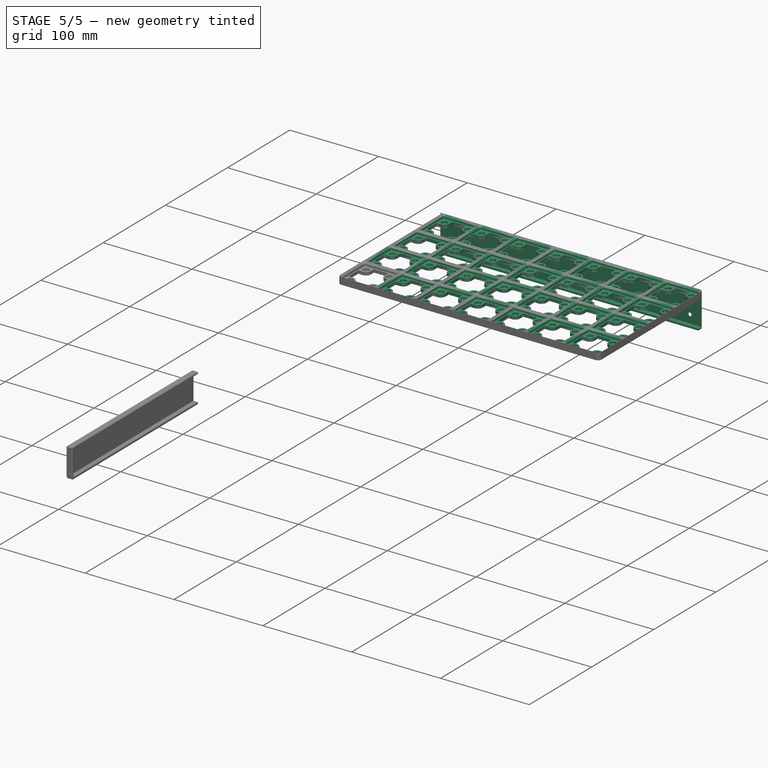
[diagram: stage 5 of 5 — iso view after this stage's code; geometry added in this stage tinted green]
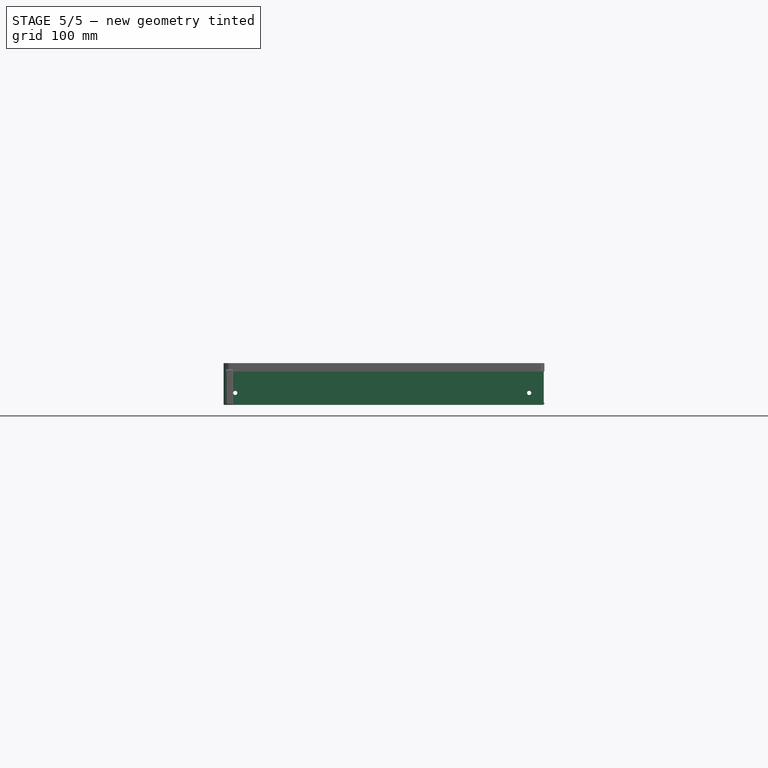
[diagram: stage 5 of 5 — front view after this stage's code; geometry added in this stage tinted green]
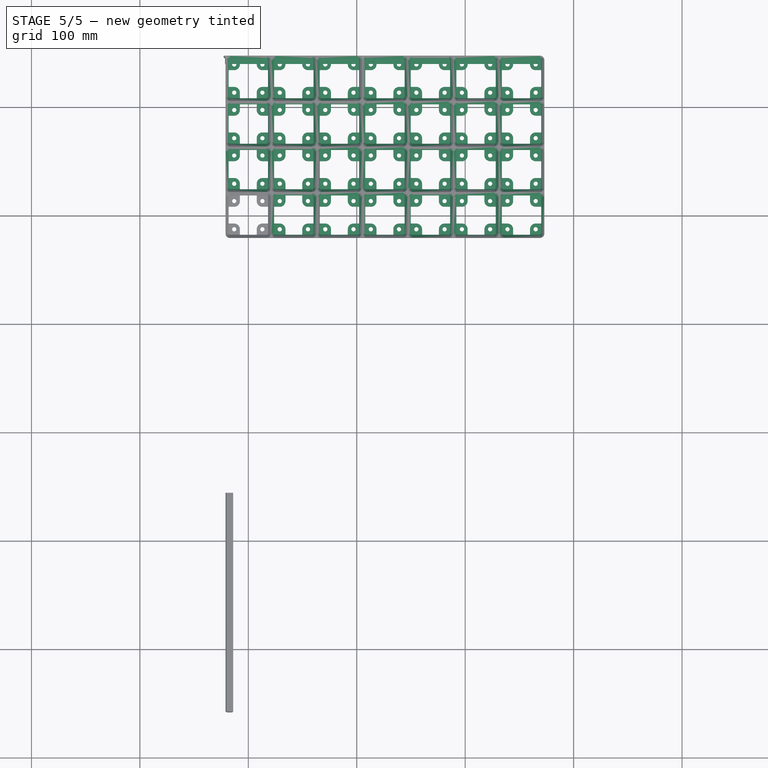
[diagram: stage 5 of 5 — top view after this stage's code; geometry added in this stage tinted green]
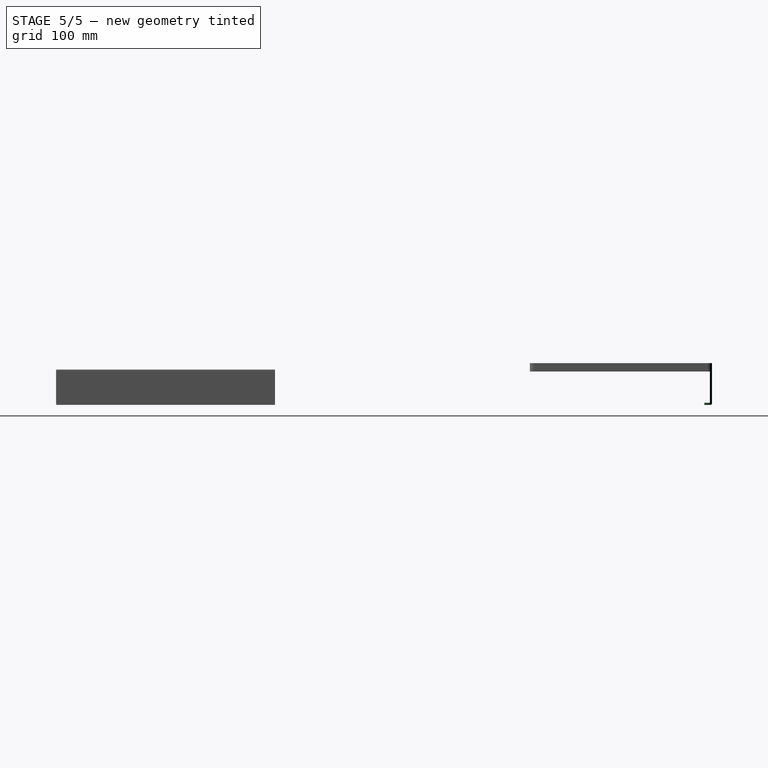
[diagram: stage 5 of 5 — right view after this stage's code; geometry added in this stage tinted green]
FEATURE [PartDesign::LinearPattern] LinearPattern001
  BaseFeature = -> Pocket008
  Direction = -> Sketch013 [H_Axis]
  Direction2 = -> Sketch013 [V_Axis]
  Length = 252
  Length2 = 126
  Mode = 1
  Mode2 = 1
  Occurrences = 7
  Occurrences2 = 4
  Offset = 42
  Offset2 = 42
  Originals = -> [Pocket005,Pocket006,Pocket007,Hole002,Pocket008]
  Reversed2 = false
  SpacingPattern = [42]
  SpacingPattern2 = [42]
  Spacings = [-1,-1,-1,-1,-1,-1]
  Spacings2 = [-1,-1,-1]
  Suppressed = false
  TransformMode = 0
  expr: Occurrences = href(<<Gridfinity Baseplate001>>.Width)
  expr: Occurrences2 = href(<<Gridfinity Baseplate001>>.Depth)
FEATURE [Sketcher::SketchObject] Sketch016
  ArcFitTolerance = 1e-06
  AttachmentSupport = -> [LinearPattern001]
  ExternalGeometry = -> [LinearPattern001]
  ExternalTypes = [0,0,0]
  FullyConstrained = true
  MakeInternals = false
  MapMode = 5
  Placement = pos=(0,0,-3) rot=(1,0,0;3.14159rad)
  sketch-geometry (5):
    g0: LineSegment StartX=-22.022 StartY=-147 StartZ=0 EndX=269 EndY=-147 EndZ=0
    g1: ArcOfCircle CenterX=269 CenterY=-143 CenterZ=0 NormalX=0 NormalY=0 NormalZ=1 AngleXU=0 Radius=4 StartAngle=4.71239 EndAngle=5.75959
    g2: LineSegment StartX=272.464 StartY=-145 StartZ=0 EndX=-21.5359 EndY=-145 EndZ=0
    g3: ArcOfCircle CenterX=-25 CenterY=-143 CenterZ=0 NormalX=0 NormalY=0 NormalZ=1 AngleXU=0 Radius=4 StartAngle=5.31612 EndAngle=5.75959
    g4: LineSegment StartX=-22.7291 StartY=-146.293 StartZ=0 EndX=-22.022 EndY=-147 EndZ=0
  constraints (15):
    c: Horizontal(g0)
    c: Horizontal(g2)
    c: Coincident(g3,g4)
    c: Coincident(g4,g0)
    c: Equal(g3,g-3)
    c: Horizontal(g-3,g0)
    c: Angle(g4,g0) = 0.785398
    c: DistanceY(g-3,g3) = 2
    c: Coincident(g2,g3)
    c: Vertical(g1,g1)
    c: Coincident(g1,g0)
    c: Coincident(g1,g-4)
    c: Symmetric(g-3,g3,g-3)
    c: Distance(g4,g4) = 1
    c: Coincident(g2,g1)
FEATURE [PartDesign::Pad] Pad007
  BaseFeature = -> LinearPattern001
  Direction = (0,0,-1)
  Length = 28.75
  Length2 = 10
  Profile = -> Sketch016
  ReferenceAxis = -> Sketch016 [N_Axis]
  Refine = true
  SideType = 0
  Suppressed = false
  Type = 0
  Type2 = 0
FEATURE [Sketcher::SketchObject] Sketch017
  ArcFitTolerance = 1e-06
  AttachmentSupport = -> [Pad007]
  ExternalGeometry = -> [Pad007]
  ExternalTypes = [0,0,0,0]
  FullyConstrained = true
  MakeInternals = false
  MapMode = 5
  Placement = pos=(0,0,-3) rot=(0,0,1;0rad)
  sketch-geometry (1):
    g0: ArcOfCircle CenterX=-25 CenterY=143 CenterZ=0 NormalX=0 NormalY=0 NormalZ=1 AngleXU=0 Radius=4 StartAngle=2.13e-14 EndAngle=0.967066
  constraints (3):
    c: Coincident(g0,g-6)
    c: Coincident(g0,g-6)
    c: Coincident(g0,g-3)
FEATURE [PartDesign::Pad] Pad008
  BaseFeature = -> Pad007
  Direction = (0,0,1)
  Length = 10
  Length2 = 10
  Profile = -> Sketch017
  ReferenceAxis = -> Sketch017 [N_Axis]
  Refine = true
  SideType = 0
  Suppressed = false
  Type = 3
  Type2 = 0
  UpToFace = -> Pad007 [Face4]
FEATURE [Sketcher::SketchObject] Sketch018
  ArcFitTolerance = 1e-06
  AttachmentSupport = -> [Pad008]
  ExternalGeometry = -> [Pad008]
  ExternalTypes = [0,0,0,0,0]
  FullyConstrained = true
  MakeInternals = false
  MapMode = 5
  Placement = pos=(0,0,-31.75) rot=(1,0,0;3.14159rad)
  sketch-geometry (4):
    g0: LineSegment StartX=-21.5359 StartY=-145 StartZ=0 EndX=-21.5359 EndY=-140 EndZ=0
    g1: LineSegment StartX=-21.5359 StartY=-140 StartZ=0 EndX=273 EndY=-140 EndZ=0
    g2: LineSegment StartX=273 StartY=-140 StartZ=0 EndX=273 EndY=-143 EndZ=0
    g3: ArcOfCircle CenterX=269 CenterY=-143 CenterZ=0 NormalX=0 NormalY=0 NormalZ=1 AngleXU=0 Radius=4 StartAngle=4.71239 EndAngle=6.28319
  constraints (11):
    c: Coincident(g-4,g0)
    c: Vertical(g0)
    c: Coincident(g0,g1)
    c: Horizontal(g1)
    c: Coincident(g1,g2)
    c: Vertical(g2)
    c: Horizontal(g-6,g2)
    c: Coincident(g3,g-6)
    c: Coincident(g3,g2)
    c: Coincident(g3,g-6)
    c: DistanceY(g-5,g0) = 7
FEATURE [PartDesign::Pad] Pad009
  BaseFeature = -> Pad008
  Direction = (0,0,-1)
  Length = 2
  Length2 = 10
  Profile = -> Sketch018
  ReferenceAxis = -> Sketch018 [N_Axis]
  SideType = 0
  Suppressed = false
  Type = 0
  Type2 = 0
FEATURE [PartDesign::Chamfer] Chamfer001
  Angle = 45
  Base = -> Pad009 [Edge2389]
  BaseFeature = -> Pad009
  ChamferType = 0
  FlipDirection = false
  Refine = true
  Size = 1
  Size2 = 1
  SupportTransform = false
  Suppressed = false
  UseAllEdges = false
FEATURE [Sketcher::SketchObject] Sketch019
  ArcFitTolerance = 1e-06
  AttachmentSupport = -> [Chamfer001]
  ExternalGeometry = -> [Chamfer001]
  ExternalTypes = [0,0]
  FullyConstrained = true
  MakeInternals = false
  MapMode = 5
  Placement = pos=(0,147,0) rot=(0,0.707107,0.707107;3.14159rad)
  sketch-geometry (3):
    g0: LineSegment [constr] StartX=-123.489 StartY=-32.75 StartZ=0 EndX=-123.489 EndY=4.75 EndZ=0
    g1: GeomPoint X=-259 Y=-22.75 Z=0
    g2: GeomPoint X=12.022 Y=-22.75 Z=0
  constraints (6):
    c: Horizontal(g0,g-3)
    c: Horizontal(g-3,g0)
    c: Symmetric(g-3,g-4,g0)
    c: Symmetric(g1,g2,g0)
    c: DistanceX(g-3,g1) = 10
    c: DistanceY(g-3,g1) = 10
FEATURE [PartDesign::Hole] Hole003
  BaseFeature = -> Chamfer001
  BaseProfileType = 7
  CustomThreadClearance = 0
  Depth = 691.424
  DepthType = 1
  Diameter = 3.9
  DrillForDepth = false
  DrillPoint = 1
  DrillPointAngle = 118
  HoleCutCountersinkAngle = 90
  HoleCutCustomValues = false
  HoleCutDepth = 3.275
  HoleCutDiameter = 6.55
  HoleCutType = 2
  ModelThread = false
  Profile = -> Sketch019
  Suppressed = false
  Tapered = false
  TaperedAngle = 90
  ThreadClass = 0
  ThreadDepth = 691.424
  ThreadDepthType = 0
  ThreadDiameter = 3.5
  ThreadDirection = 0
  ThreadFit = 0
  ThreadSize = 10
  ThreadType = 1
  Threaded = false
  UseCustomThreadClearance = false
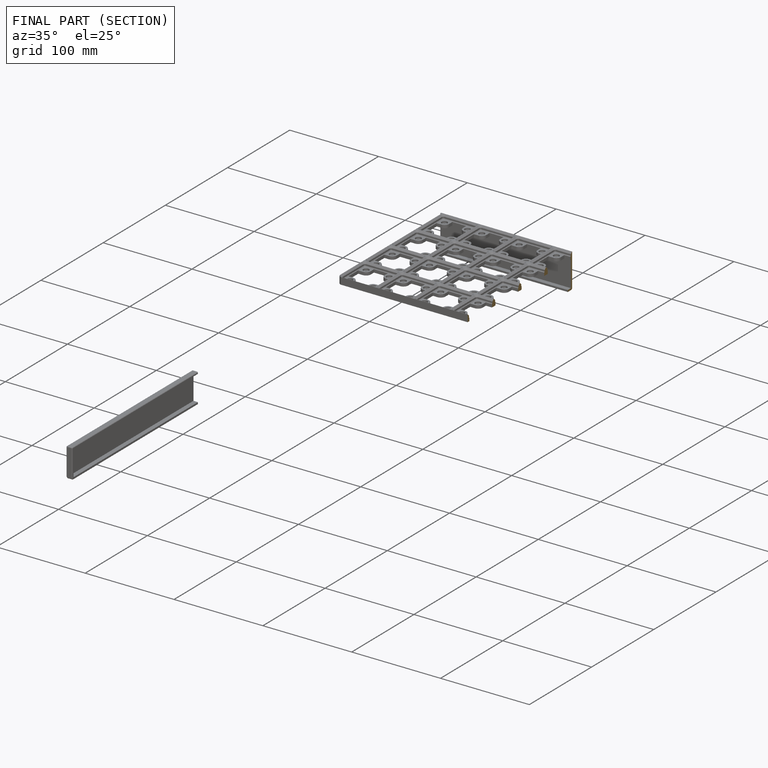
[diagram: finished part — half-section view (interior)]
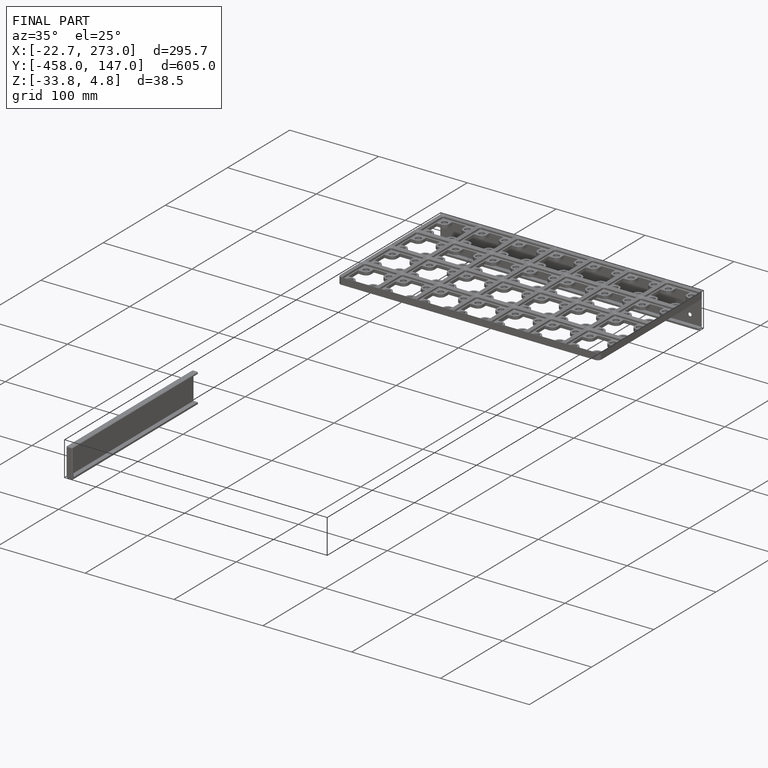
[diagram: finished part — iso view with bounding-box wireframe]
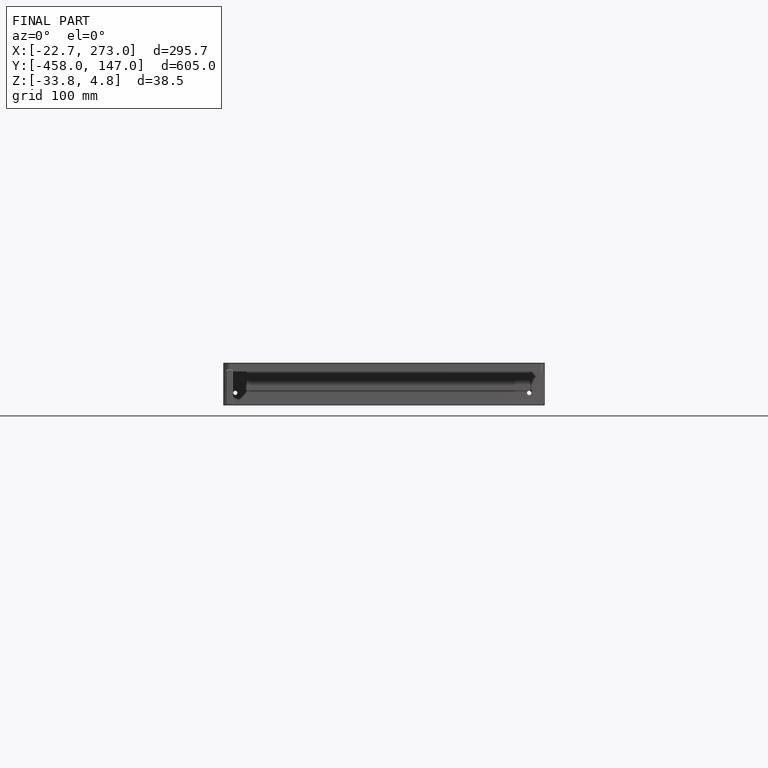
[diagram: finished part — front view with bounding-box wireframe]
